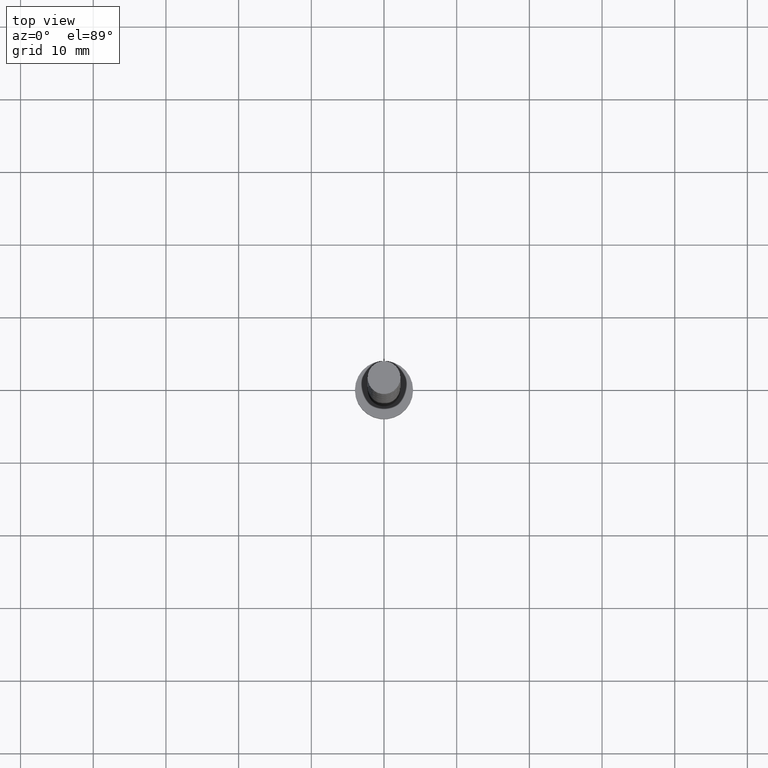
[diagram: clean part render]
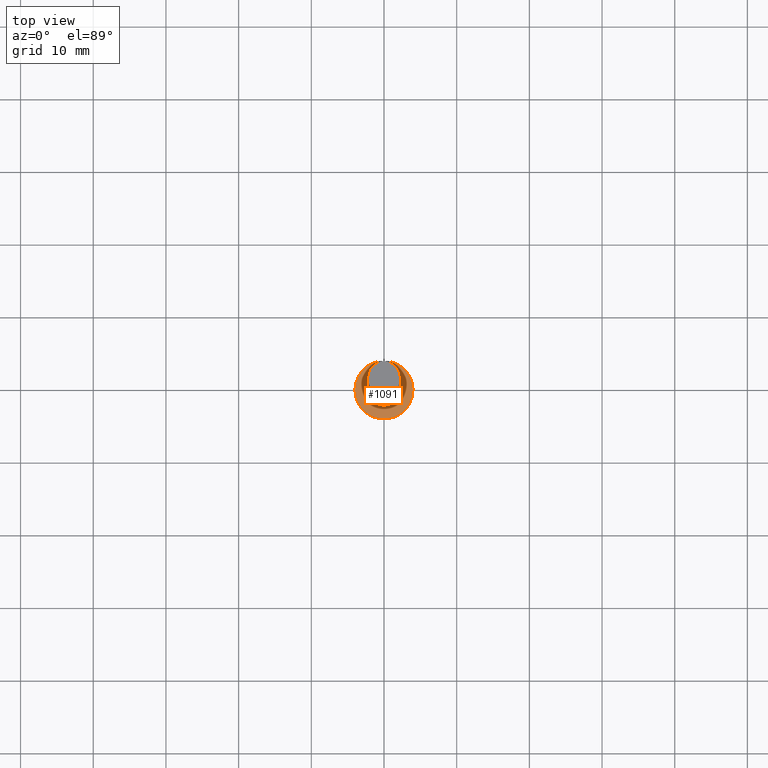
[diagram: same view with one face highlighted and labeled with its STEP entity id]
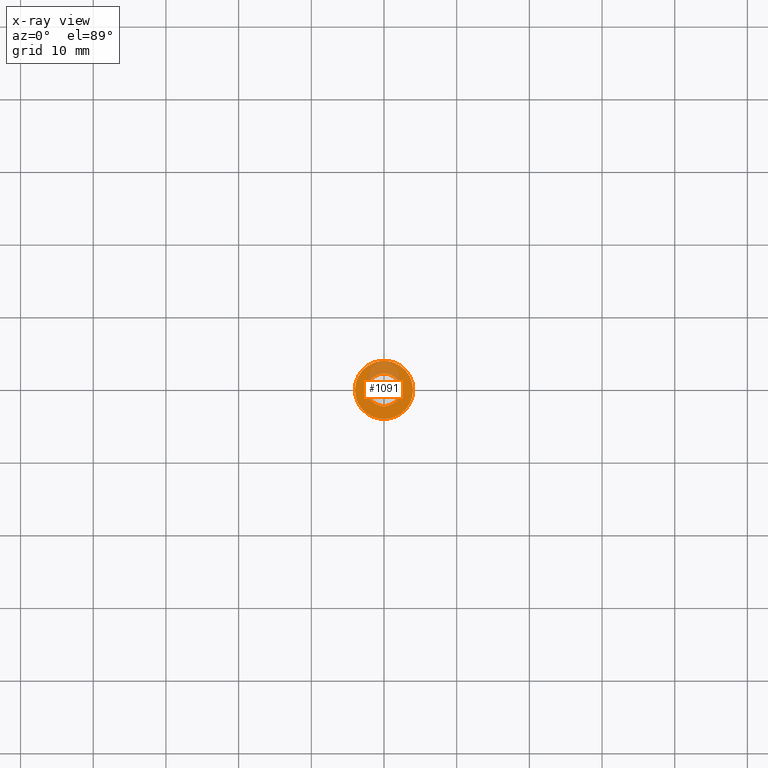
[diagram: x-ray of the same camera — body ghosted, the highlighted face saturated]
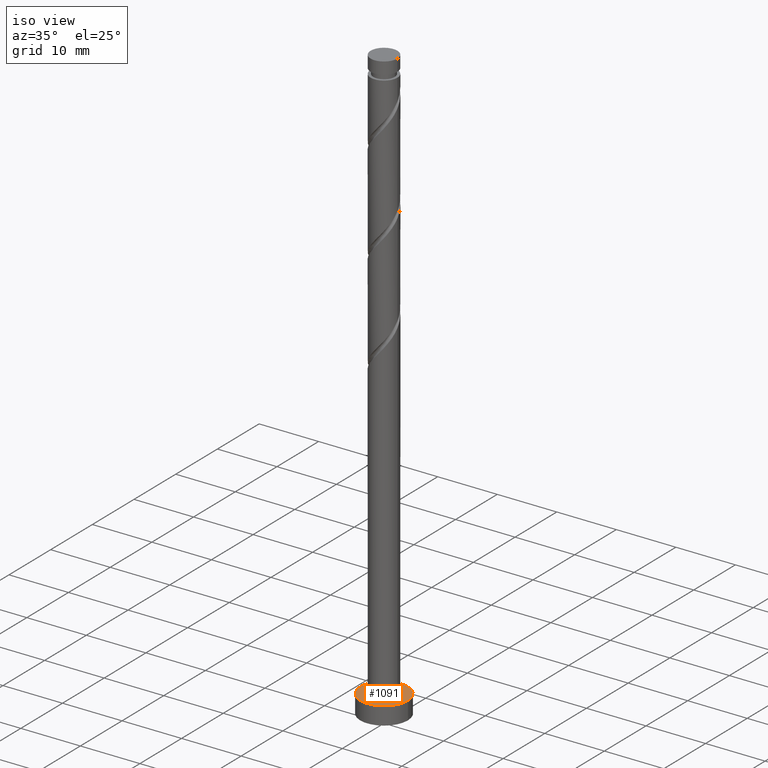
[diagram: same view with one face highlighted and labeled with its STEP entity id]
A machine part, top view. The second image highlights one B-rep face of the part: STEP entity #1091.
The next image is the same camera in x-ray: the body ghosted, the highlighted face saturated — about 23% of this face is hidden behind the body in this view.
A second angle (iso view) of the same face is appended — the face is thin or edge-on in the first view.
In plain terms, the highlighted planar face has unit normal (0, 0, 1).
Its self-contained STEP definition (entity closure, byte-faithful):
#50 = FACE_OUTER_BOUND ( 'NONE', #433, .T. ) ;
#103 = CIRCLE ( 'NONE', #307, 4.000000000000000000 ) ;
#154 = EDGE_CURVE ( 'NONE', #1466, #1474, #103, .T. ) ;
#191 = DIRECTION ( 'NONE',  ( 1.000000000000000000, 0.000000000000000000, 0.000000000000000000 ) ) ;
#230 = CARTESIAN_POINT ( 'NONE',  ( 0.000000000000000000, 0.000000000000000000, 3.000000000000000000 ) ) ;
#307 = AXIS2_PLACEMENT_3D ( 'NONE', #755, #761, #191 ) ;
#310 = ORIENTED_EDGE ( 'NONE', *, *, #154, .T. ) ;
#355 = DIRECTION ( 'NONE',  ( 0.000000000000000000, 0.000000000000000000, 1.000000000000000000 ) ) ;
#395 = PLANE ( 'NONE',  #871 ) ;
#404 = CARTESIAN_POINT ( 'NONE',  ( 0.000000000000000000, 0.000000000000000000, 3.000000000000000000 ) ) ;
#410 = VERTEX_POINT ( 'NONE', #1250 ) ;
#416 = EDGE_CURVE ( 'NONE', #410, #990, #1022, .T. ) ;
#433 = EDGE_LOOP ( 'NONE', ( #685, #310 ) ) ;
#444 = EDGE_CURVE ( 'NONE', #1474, #1466, #1351, .T. ) ;
#502 = DIRECTION ( 'NONE',  ( 1.000000000000000000, 0.000000000000000000, 0.000000000000000000 ) ) ;
#598 = ORIENTED_EDGE ( 'NONE', *, *, #1061, .F. ) ;
#685 = ORIENTED_EDGE ( 'NONE', *, *, #444, .T. ) ;
#755 = CARTESIAN_POINT ( 'NONE',  ( 0.000000000000000000, 0.000000000000000000, 3.000000000000000000 ) ) ;
#756 = CARTESIAN_POINT ( 'NONE',  ( 2.250000000000000000, 2.755455298081543792E-16, 3.000000000000000000 ) ) ;
#761 = DIRECTION ( 'NONE',  ( 0.000000000000000000, 0.000000000000000000, 1.000000000000000000 ) ) ;
#783 = AXIS2_PLACEMENT_3D ( 'NONE', #1265, #1385, #502 ) ;
#818 = DIRECTION ( 'NONE',  ( 1.000000000000000000, 0.000000000000000000, 0.000000000000000000 ) ) ;
#857 = DIRECTION ( 'NONE',  ( 0.000000000000000000, 0.000000000000000000, 1.000000000000000000 ) ) ;
#871 = AXIS2_PLACEMENT_3D ( 'NONE', #404, #857, #1182 ) ;
#949 = DIRECTION ( 'NONE',  ( 1.000000000000000000, 0.000000000000000000, 0.000000000000000000 ) ) ;
#972 = DIRECTION ( 'NONE',  ( 0.000000000000000000, 0.000000000000000000, 1.000000000000000000 ) ) ;
#982 = FACE_BOUND ( 'NONE', #1114, .T. ) ;
#990 = VERTEX_POINT ( 'NONE', #756 ) ;
#1022 = CIRCLE ( 'NONE', #1327, 2.250000000000000000 ) ;
#1061 = EDGE_CURVE ( 'NONE', #990, #410, #1279, .T. ) ;
#1091 = ADVANCED_FACE ( 'NONE', ( #982, #50 ), #395, .T. ) ;
#1114 = EDGE_LOOP ( 'NONE', ( #1484, #598 ) ) ;
#1118 = CARTESIAN_POINT ( 'NONE',  ( 4.000000000000000000, 4.898587196589412829E-16, 3.000000000000000000 ) ) ;
#1182 = DIRECTION ( 'NONE',  ( 1.000000000000000000, 0.000000000000000000, -0.000000000000000000 ) ) ;
#1250 = CARTESIAN_POINT ( 'NONE',  ( -2.250000000000000000, 0.000000000000000000, 3.000000000000000000 ) ) ;
#1265 = CARTESIAN_POINT ( 'NONE',  ( 0.000000000000000000, 0.000000000000000000, 3.000000000000000000 ) ) ;
#1279 = CIRCLE ( 'NONE', #1373, 2.250000000000000000 ) ;
#1327 = AXIS2_PLACEMENT_3D ( 'NONE', #230, #355, #818 ) ;
#1351 = CIRCLE ( 'NONE', #783, 4.000000000000000000 ) ;
#1373 = AXIS2_PLACEMENT_3D ( 'NONE', #1421, #972, #949 ) ;
#1385 = DIRECTION ( 'NONE',  ( 0.000000000000000000, 0.000000000000000000, 1.000000000000000000 ) ) ;
#1421 = CARTESIAN_POINT ( 'NONE',  ( 0.000000000000000000, 0.000000000000000000, 3.000000000000000000 ) ) ;
#1466 = VERTEX_POINT ( 'NONE', #1118 ) ;
#1474 = VERTEX_POINT ( 'NONE', #1479 ) ;
#1479 = CARTESIAN_POINT ( 'NONE',  ( -4.000000000000000000, 0.000000000000000000, 3.000000000000000000 ) ) ;
#1484 = ORIENTED_EDGE ( 'NONE', *, *, #416, .F. ) ;